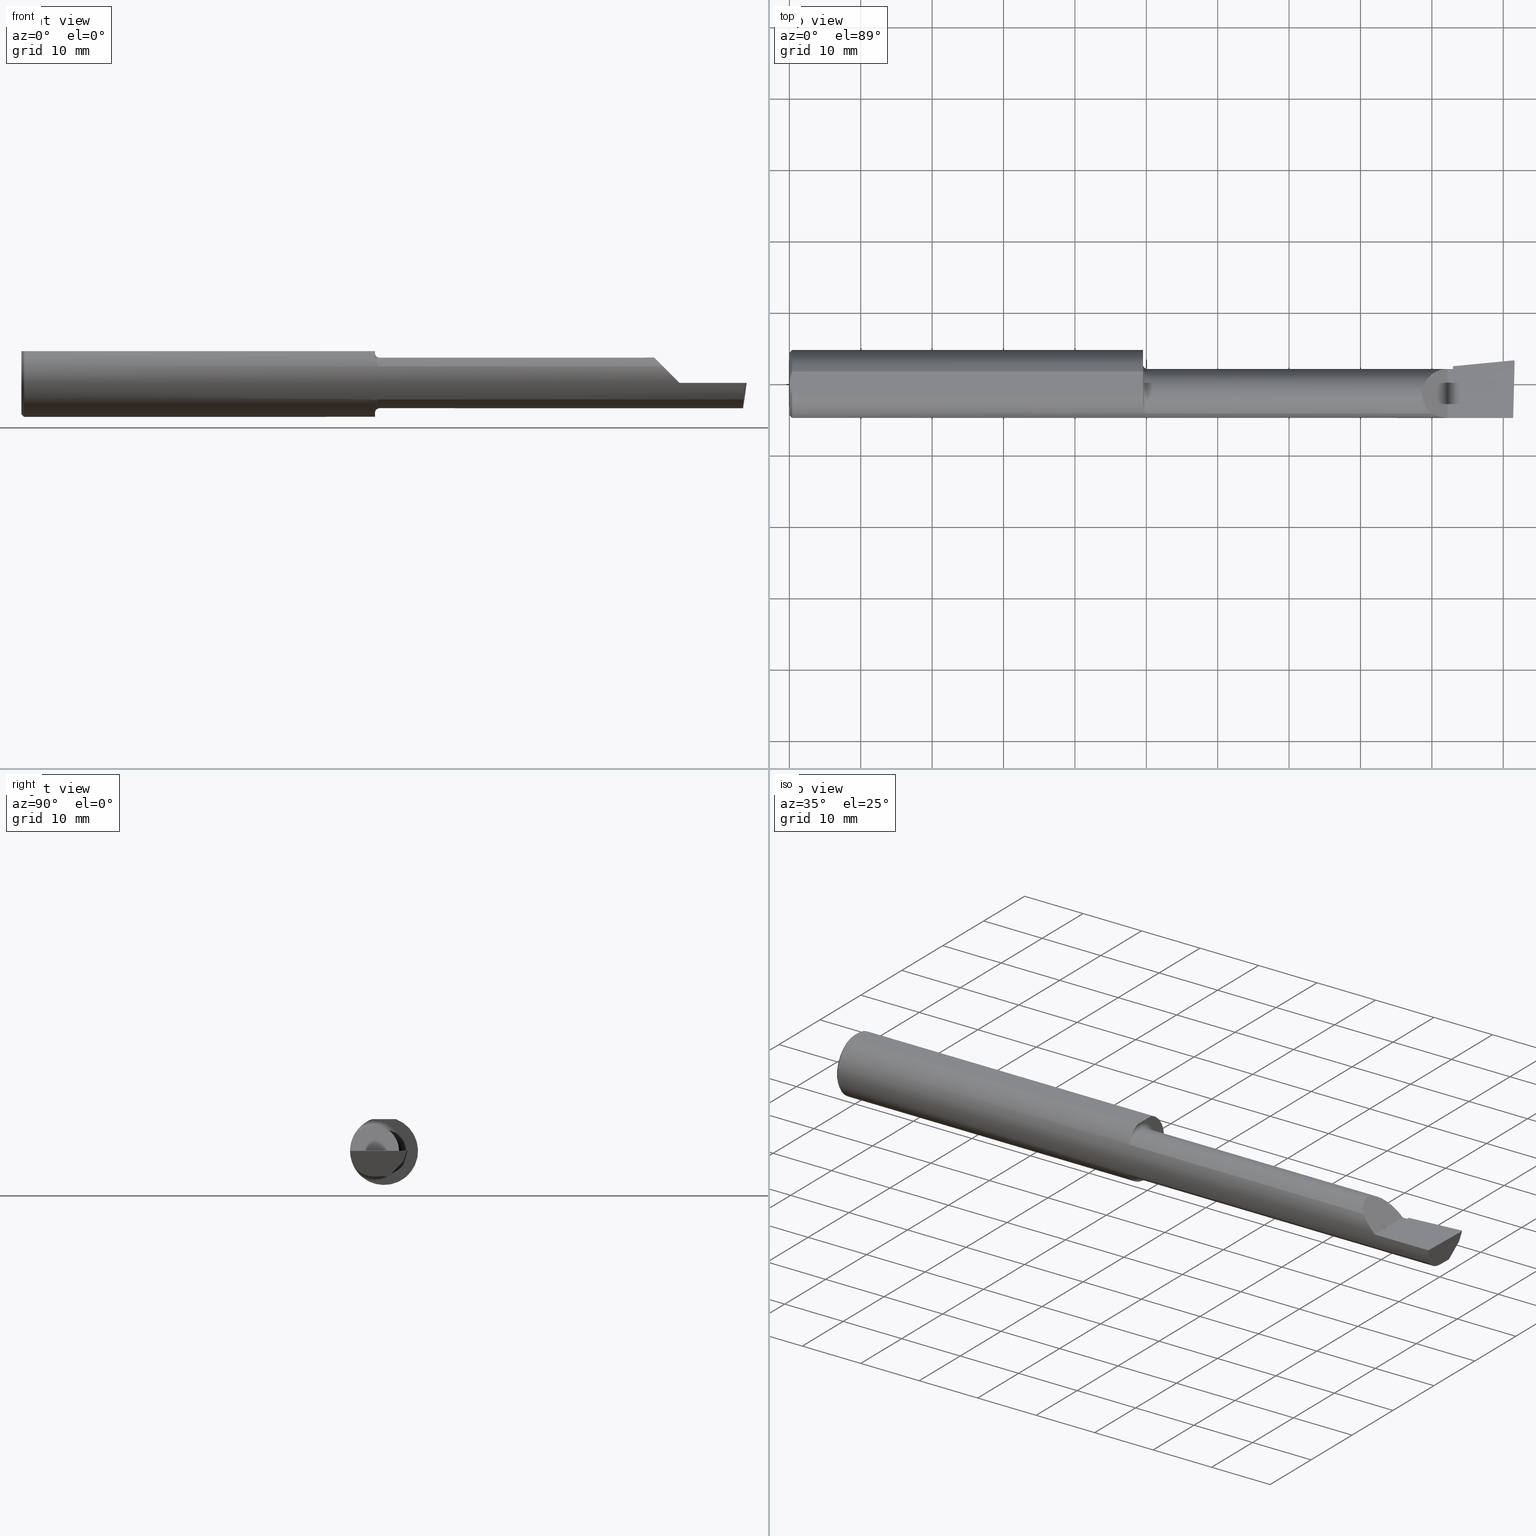
[diagram: canonical four-view strip — front | top / right | iso, engineering-drawing reading convention]
A machine part, canonical four-view strip (front | top / right | iso — engineering-drawing reading convention). The complete STEP part file that produces these views, byte-faithful:
ISO-10303-21;
HEADER;
FILE_DESCRIPTION (( 'STEP AP203' ),
    '1' );
FILE_NAME ('213645-B3202000R.STEP',
    '2024-04-12T22:49:06',
    ( '' ),
    ( '' ),
    'SwSTEP 2.0',
    'SolidWorks 2022',
    '' );
FILE_SCHEMA (( 'CONFIG_CONTROL_DESIGN' ));
ENDSEC;

DATA;
#1 = VERTEX_POINT ( 'NONE', #52 ) ;
#2 = DIRECTION ( 'NONE',  ( -1.000000000000000000, 5.691349986800549142E-18, -0.000000000000000000 ) ) ;
#3 = ORIENTED_EDGE ( 'NONE', *, *, #478, .T. ) ;
#4 = CARTESIAN_POINT ( 'NONE',  ( 1.970903862568969656, -0.1628809688430622182, 0.09258733509388467064 ) ) ;
#5 = DIRECTION ( 'NONE',  ( 0.09165774897393337561, -0.9519021185660612172, 0.2923717047227311627 ) ) ;
#6 = SECURITY_CLASSIFICATION ( '', '', #207 ) ;
#7 = EDGE_CURVE ( 'NONE', #268, #485, #713, .T. ) ;
#8 = ORIENTED_EDGE ( 'NONE', *, *, #262, .T. ) ;
#9 = CYLINDRICAL_SURFACE ( 'NONE', #236, 0.006499999999999991028 ) ;
#10 = CARTESIAN_POINT ( 'NONE',  ( 3.991786964307025620, 0.1037103972642544891, -0.06112352112763067696 ) ) ;
#11 = EDGE_LOOP ( 'NONE', ( #200, #88, #474, #169, #164, #527, #187, #192, #103, #159 ) ) ;
#12 = DIRECTION ( 'NONE',  ( 4.268512490100411279E-18, -1.000000000000000000, 0.000000000000000000 ) ) ;
#13 = AXIS2_PLACEMENT_3D ( 'NONE', #141, #158, #690 ) ;
#14 = LINE ( 'NONE', #670, #515 ) ;
#15 =( BOUNDED_CURVE ( )  B_SPLINE_CURVE ( 3, ( #481, #705, #602, #642 ),
 .UNSPECIFIED., .F., .T. ) 
 B_SPLINE_CURVE_WITH_KNOTS ( ( 4, 4 ),
 ( 0.4889314207010859170, 1.042347087928808147 ),
 .UNSPECIFIED. ) 
 CURVE ( )  GEOMETRIC_REPRESENTATION_ITEM ( )  RATIONAL_B_SPLINE_CURVE ( ( 1.000000000000000000, 0.9746400248777661313, 0.9746400248777661313, 1.000000000000000000 ) ) 
 REPRESENTATION_ITEM ( '' )  );
#16 = EDGE_CURVE ( 'NONE', #329, #281, #35, .T. ) ;
#17 = CARTESIAN_POINT ( 'NONE',  ( 1.950000000000000178, -0.09715400696864148755, -0.1601908905959922580 ) ) ;
#18 = CARTESIAN_POINT ( 'NONE',  ( 3.659999999999999698, 0.1149890494305082084, -0.01656765604781321524 ) ) ;
#19 = EDGE_CURVE ( 'NONE', #91, #691, #139, .T. ) ;
#20 = CARTESIAN_POINT ( 'NONE',  ( 3.659999999999999698, -0.05739999999999999963, 0.000000000000000000 ) ) ;
#21 = DIRECTION ( 'NONE',  ( -1.000000000000000000, -0.000000000000000000, -0.000000000000000000 ) ) ;
#22 = FACE_OUTER_BOUND ( 'NONE', #270, .T. ) ;
#23 = AXIS2_PLACEMENT_3D ( 'NONE', #244, #686, #195 ) ;
#24 = DIRECTION ( 'NONE',  ( 1.000000000000000000, 0.000000000000000000, 0.000000000000000000 ) ) ;
#25 = CARTESIAN_POINT ( 'NONE',  ( 3.659999999999999698, 0.09791172361284120051, -1.402030126304829977E-15 ) ) ;
#26 = ADVANCED_FACE ( 'NONE', ( #592 ), #343, .T. ) ;
#27 = APPLICATION_PROTOCOL_DEFINITION ( 'international standard', 'config_control_design', 1994, #584 ) ;
#28 = AXIS2_PLACEMENT_3D ( 'NONE', #460, #674, #12 ) ;
#29 = ORIENTED_EDGE ( 'NONE', *, *, #43, .T. ) ;
#30 = DIRECTION ( 'NONE',  ( 0.000000000000000000, -1.000000000000000000, 0.000000000000000000 ) ) ;
#31 = EDGE_LOOP ( 'NONE', ( #469, #117, #29, #590, #84 ) ) ;
#32 = PERSON_AND_ORGANIZATION ( #124, #227 ) ;
#33 = ORIENTED_EDGE ( 'NONE', *, *, #193, .T. ) ;
#34 = DIRECTION ( 'NONE',  ( -1.000000000000000000, -0.000000000000000000, -0.000000000000000000 ) ) ;
#35 = LINE ( 'NONE', #699, #364 ) ;
#36 = CIRCLE ( 'NONE', #13, 0.1400500000000002299 ) ;
#37 = APPROVAL_ROLE ( '' ) ;
#38 = VERTEX_POINT ( 'NONE', #389 ) ;
#39 = CARTESIAN_POINT ( 'NONE',  ( 3.992906680581862489, 0.1299669910246663840, -1.701202096925064102E-16 ) ) ;
#40 = ORIENTED_EDGE ( 'NONE', *, *, #346, .T. ) ;
#41 = CALENDAR_DATE ( 2024, 12, 4 ) ;
#42 = CARTESIAN_POINT ( 'NONE',  ( 1.950000000000000178, -0.09715400696864148755, 0.1601908905959922580 ) ) ;
#43 = EDGE_CURVE ( 'NONE', #691, #137, #48, .T. ) ;
#44 = APPROVAL_DATE_TIME ( #688, #264 ) ;
#45 = ORIENTED_EDGE ( 'NONE', *, *, #19, .T. ) ;
#46 = CARTESIAN_POINT ( 'NONE',  ( 3.992906680581862489, 0.1299669910246663840, -1.701202096925064102E-16 ) ) ;
#47 = ORIENTED_EDGE ( 'NONE', *, *, #142, .F. ) ;
#48 = B_SPLINE_CURVE_WITH_KNOTS ( 'NONE', 3,
 ( #512, #122, #610, #347, #504, #162 ),
 .UNSPECIFIED., .F., .F.,
 ( 4, 2, 4 ),
 ( 0.003480013901590607410, 0.004330767971208083697, 0.005181522040825559984 ),
 .UNSPECIFIED. ) ;
#49 = VECTOR ( 'NONE', #416, 39.37007874015748143 ) ;
#50 = VERTEX_POINT ( 'NONE', #230 ) ;
#51 = CARTESIAN_POINT ( 'NONE',  ( 1.950000000000000178, -0.06597272163553666302, 0.1753499999999999781 ) ) ;
#52 = CARTESIAN_POINT ( 'NONE',  ( 1.950000000000000178, -0.09715400696864148755, 0.1601908905959922580 ) ) ;
#53 = ORIENTED_EDGE ( 'NONE', *, *, #272, .T. ) ;
#54 = CARTESIAN_POINT ( 'NONE',  ( 3.475085956200449022, 0.08265000000000018165, 0.1549140437995492336 ) ) ;
#55 = CARTESIAN_POINT ( 'NONE',  ( 3.977873865042411250, -0.05739999999999999963, -0.1400500000000000633 ) ) ;
#56 = ORIENTED_EDGE ( 'NONE', *, *, #588, .T. ) ;
#57 = CARTESIAN_POINT ( 'NONE',  ( 1.953025912205684111, -0.1310442973014116497, 0.1341609063345041430 ) ) ;
#58 = LINE ( 'NONE', #177, #580 ) ;
#59 = ORIENTED_EDGE ( 'NONE', *, *, #81, .T. ) ;
#60 = LINE ( 'NONE', #495, #123 ) ;
#61 = EDGE_CURVE ( 'NONE', #304, #289, #58, .T. ) ;
#62 = PLANE ( 'NONE',  #240 ) ;
#63 = CC_DESIGN_PERSON_AND_ORGANIZATION_ASSIGNMENT ( #32, #152, ( #6 ) ) ;
#64 = EDGE_LOOP ( 'NONE', ( #615, #311, #668, #153, #664 ) ) ;
#65 = CARTESIAN_POINT ( 'NONE',  ( 1.975000000000000089, -0.1635956445993030084, 0.09130436773856158428 ) ) ;
#66 = CARTESIAN_POINT ( 'NONE',  ( 3.977873865042411250, -0.05739999999999999963, -0.1400500000000000633 ) ) ;
#67 = LOCAL_TIME ( 15, 49, 6.000000000000000000, #320 ) ;
#68 = VERTEX_POINT ( 'NONE', #10 ) ;
#69 = FACE_OUTER_BOUND ( 'NONE', #197, .T. ) ;
#70 = LINE ( 'NONE', #625, #210 ) ;
#71 = CARTESIAN_POINT ( 'NONE',  ( 1.975000000000000089, -0.1635956445993032859, -0.09130436773856125121 ) ) ;
#72 = AXIS2_PLACEMENT_3D ( 'NONE', #709, #97, #421 ) ;
#73 = CARTESIAN_POINT ( 'NONE',  ( 1.967975941902153414, -0.1612443294219081946, -0.09540922431498183309 ) ) ;
#74 = EDGE_CURVE ( 'NONE', #99, #289, #631, .T. ) ;
#75 = DIRECTION ( 'NONE',  ( -1.000000000000000000, -4.268512490100411279E-18, 0.000000000000000000 ) ) ;
#76 = DIRECTION ( 'NONE',  ( -4.268512490100411279E-18, 1.000000000000000000, 0.000000000000000000 ) ) ;
#77 = CARTESIAN_POINT ( 'NONE',  ( 3.986748873877666188, 0.1140025764947606574, -0.05001468779820775895 ) ) ;
#78 = LINE ( 'NONE', #673, #175 ) ;
#79 = DIRECTION ( 'NONE',  ( 0.000000000000000000, 1.000000000000000000, 8.537024980200821325E-17 ) ) ;
#80 = FACE_OUTER_BOUND ( 'NONE', #436, .T. ) ;
#81 = EDGE_CURVE ( 'NONE', #208, #94, #182, .T. ) ;
#82 = AXIS2_PLACEMENT_3D ( 'NONE', #471, #138, #410 ) ;
#83 =( CONVERSION_BASED_UNIT ( 'INCH', #535 ) LENGTH_UNIT ( ) NAMED_UNIT ( #667 ) );
#84 = ORIENTED_EDGE ( 'NONE', *, *, #493, .F. ) ;
#85 = DIRECTION ( 'NONE',  ( -0.1053106618240643999, -0.6976485211320200275, -0.7086580314005358483 ) ) ;
#86 = DIRECTION ( 'NONE',  ( -0.02617694830779389997, -0.9996573249755593693, -8.535148296544462419E-17 ) ) ;
#87 = ORIENTED_EDGE ( 'NONE', *, *, #179, .T. ) ;
#88 = ORIENTED_EDGE ( 'NONE', *, *, #716, .T. ) ;
#89 = LOCAL_TIME ( 15, 49, 6.000000000000000000, #693 ) ;
#90 = PERSON_AND_ORGANIZATION_ROLE ( 'design_owner' ) ;
#91 = VERTEX_POINT ( 'NONE', #563 ) ;
#92 = CARTESIAN_POINT ( 'NONE',  ( 1.975000000000000089, -0.1635956445993030084, 0.09130436773856158428 ) ) ;
#93 = APPROVAL ( #538, 'UNSPECIFIED' ) ;
#94 = VERTEX_POINT ( 'NONE', #55 ) ;
#95 = ADVANCED_FACE ( 'NONE', ( #276 ), #62, .F. ) ;
#96 = VERTEX_POINT ( 'NONE', #607 ) ;
#97 = DIRECTION ( 'NONE',  ( -1.000000000000000000, -4.268512490100411279E-18, 0.000000000000000000 ) ) ;
#98 =( NAMED_UNIT ( * ) PLANE_ANGLE_UNIT ( ) SI_UNIT ( $, .RADIAN. ) );
#99 = VERTEX_POINT ( 'NONE', #171 ) ;
#100 = VECTOR ( 'NONE', #407, 39.37007874015748143 ) ;
#101 = CARTESIAN_POINT ( 'NONE',  ( 1.950000000000000178, 0.000000000000000000, 0.000000000000000000 ) ) ;
#102 = ORIENTED_EDGE ( 'NONE', *, *, #431, .F. ) ;
#103 = ORIENTED_EDGE ( 'NONE', *, *, #148, .T. ) ;
#104 = VECTOR ( 'NONE', #369, 39.37007874015748143 ) ;
#105 = ORIENTED_EDGE ( 'NONE', *, *, #300, .T. ) ;
#106 = CARTESIAN_POINT ( 'NONE',  ( 3.986928424763410472, 0.1077565752722221687, -0.04820640339064741209 ) ) ;
#107 = CARTESIAN_POINT ( 'NONE',  ( 3.977925907309857845, -0.1365595166907234981, -0.1227499502647109025 ) ) ;
#108 = ORIENTED_EDGE ( 'NONE', *, *, #400, .F. ) ;
#109 = LINE ( 'NONE', #275, #567 ) ;
#110 = APPROVAL_PERSON_ORGANIZATION ( #212, #264, #37 ) ;
#111 = APPROVAL_DATE_TIME ( #423, #600 ) ;
#112 = ADVANCED_FACE ( 'NONE', ( #662 ), #559, .F. ) ;
#113 = ORIENTED_EDGE ( 'NONE', *, *, #16, .F. ) ;
#114 = CARTESIAN_POINT ( 'NONE',  ( 1.975000000000000089, -0.05740000000000000657, 0.000000000000000000 ) ) ;
#115 = CC_DESIGN_DATE_AND_TIME_ASSIGNMENT ( #488, #640, ( #558 ) ) ;
#116 = CARTESIAN_POINT ( 'NONE',  ( 3.538695632261437130, -0.1635956445993027863, 0.09130436773856213939 ) ) ;
#117 = ORIENTED_EDGE ( 'NONE', *, *, #555, .T. ) ;
#118 = EDGE_CURVE ( 'NONE', #392, #485, #132, .T. ) ;
#119 = FACE_OUTER_BOUND ( 'NONE', #711, .T. ) ;
#120 = CARTESIAN_POINT ( 'NONE',  ( 3.629999999999999893, -0.1873499999999999888, -1.383850883036508279E-16 ) ) ;
#121 = CARTESIAN_POINT ( 'NONE',  ( 1.958072954143140310, -0.1479074971576201103, 0.1152872342625229363 ) ) ;
#122 = CARTESIAN_POINT ( 'NONE',  ( 0.003000000000000171366, 0.01127363201155561975, 0.1753499999999999781 ) ) ;
#123 = VECTOR ( 'NONE', #219, 39.37007874015748143 ) ;
#124 = PERSON ( 'UNSPECIFIED', 'UNSPECIFIED', 'UNSPECIFIED', ('UNSPECIFIED'), ('UNSPECIFIED'), ('UNSPECIFIED') ) ;
#125 = CARTESIAN_POINT ( 'NONE',  ( 0.000000000000000000, -0.06597272163553657975, 0.1753499999999999781 ) ) ;
#126 = CARTESIAN_POINT ( 'NONE',  ( 1.975000000000000089, -0.1635956445993032859, -0.09130436773856125121 ) ) ;
#127 = EDGE_CURVE ( 'NONE', #38, #451, #228, .T. ) ;
#128 = CARTESIAN_POINT ( 'NONE',  ( 4.000000000000000000, 0.2373500000000000332, 0.1753499999999999504 ) ) ;
#129 = DIRECTION ( 'NONE',  ( 0.1240019227988278100, 0.3022330132596598440, 0.9451342385281467084 ) ) ;
#130 = CARTESIAN_POINT ( 'NONE',  ( 1.953041727949558215, -0.1311116946065054023, -0.1340922927843367918 ) ) ;
#131 = CIRCLE ( 'NONE', #509, 0.1400499999999998413 ) ;
#132 =( BOUNDED_CURVE ( )  B_SPLINE_CURVE ( 3, ( #334, #507, #456, #553 ),
 .UNSPECIFIED., .F., .F. ) 
 B_SPLINE_CURVE_WITH_KNOTS ( ( 4, 4 ),
 ( 3.403716554974003827, 3.413688882750591347 ),
 .UNSPECIFIED. ) 
 CURVE ( )  GEOMETRIC_REPRESENTATION_ITEM ( )  RATIONAL_B_SPLINE_CURVE ( ( 1.000000000000000000, 0.9999917127403961103, 0.9999917127403961103, 1.000000000000000000 ) ) 
 REPRESENTATION_ITEM ( '' )  );
#133 = CARTESIAN_POINT ( 'NONE',  ( 0.01499999999999999424, 0.000000000000000000, 0.000000000000000000 ) ) ;
#134 = ADVANCED_FACE ( 'NONE', ( #166 ), #718, .F. ) ;
#135 = LINE ( 'NONE', #520, #616 ) ;
#136 = LINE ( 'NONE', #521, #218 ) ;
#137 = VERTEX_POINT ( 'NONE', #350 ) ;
#138 = DIRECTION ( 'NONE',  ( -8.744705756855574331E-17, 0.000000000000000000, -1.000000000000000000 ) ) ;
#139 = B_SPLINE_CURVE_WITH_KNOTS ( 'NONE', 3,
 ( #696, #647, #318, #483, #146, #374 ),
 .UNSPECIFIED., .F., .F.,
 ( 4, 2, 4 ),
 ( 0.001779942938356815062, 0.002629978419973711019, 0.003480013901590607410 ),
 .UNSPECIFIED. ) ;
#140 = EDGE_LOOP ( 'NONE', ( #597, #560, #641, #326 ) ) ;
#141 = CARTESIAN_POINT ( 'NONE',  ( 3.659999999999999698, -0.05739999999999999963, 0.000000000000000000 ) ) ;
#142 = EDGE_CURVE ( 'NONE', #94, #564, #14, .T. ) ;
#143 = ORIENTED_EDGE ( 'NONE', *, *, #380, .T. ) ;
#144 = PERSON_AND_ORGANIZATION ( #124, #227 ) ;
#145 = PLANE ( 'NONE',  #72 ) ;
#146 = CARTESIAN_POINT ( 'NONE',  ( 0.003000000000000172234, -0.01126410975715120416, 0.1753500000000000059 ) ) ;
#147 = PRODUCT ( '213645-B3202000R', '213645-B3202000R', '', ( #528 ) ) ;
#148 = EDGE_CURVE ( 'NONE', #268, #247, #626, .T. ) ;
#149 = CALENDAR_DATE ( 2024, 12, 4 ) ;
#150 = EDGE_LOOP ( 'NONE', ( #384, #476, #510 ) ) ;
#151 = CARTESIAN_POINT ( 'NONE',  ( 3.538695632261437130, -0.1635956445993027863, 0.09130436773856213939 ) ) ;
#152 = PERSON_AND_ORGANIZATION_ROLE ( 'classification_officer' ) ;
#153 = ORIENTED_EDGE ( 'NONE', *, *, #19, .F. ) ;
#154 = CARTESIAN_POINT ( 'NONE',  ( 3.993310817358646236, 0.1299961668063693565, -1.707455450039281104E-16 ) ) ;
#155 = EDGE_LOOP ( 'NONE', ( #446, #540, #381, #102 ) ) ;
#156 = AXIS2_PLACEMENT_3D ( 'NONE', #128, #458, #684 ) ;
#157 = EDGE_CURVE ( 'NONE', #50, #38, #340, .T. ) ;
#158 = DIRECTION ( 'NONE',  ( -1.000000000000000000, -4.268512490100411279E-18, -0.000000000000000000 ) ) ;
#159 = ORIENTED_EDGE ( 'NONE', *, *, #211, .T. ) ;
#160 = ORIENTED_EDGE ( 'NONE', *, *, #239, .T. ) ;
#161 = FACE_OUTER_BOUND ( 'NONE', #546, .T. ) ;
#162 = CARTESIAN_POINT ( 'NONE',  ( 0.01499999999999999424, 0.06597272163553663527, 0.1753499999999999781 ) ) ;
#163 = AXIS2_PLACEMENT_3D ( 'NONE', #20, #238, #30 ) ;
#164 = ORIENTED_EDGE ( 'NONE', *, *, #288, .F. ) ;
#165 = LINE ( 'NONE', #613, #308 ) ;
#166 = FACE_OUTER_BOUND ( 'NONE', #309, .T. ) ;
#167 = EDGE_CURVE ( 'NONE', #68, #608, #70, .T. ) ;
#168 = CC_DESIGN_DATE_AND_TIME_ASSIGNMENT ( #251, #435, ( #6 ) ) ;
#169 = ORIENTED_EDGE ( 'NONE', *, *, #167, .T. ) ;
#170 = DIRECTION ( 'NONE',  ( 0.7071067811865390240, 0.000000000000000000, -0.7071067811865560104 ) ) ;
#171 = CARTESIAN_POINT ( 'NONE',  ( 3.629999999999999893, -0.1873499999999999888, -1.383850883036508279E-16 ) ) ;
#172 = ADVANCED_FACE ( 'NONE', ( #22 ), #180, .T. ) ;
#173 = ORIENTED_EDGE ( 'NONE', *, *, #193, .F. ) ;
#174 = CARTESIAN_POINT ( 'NONE',  ( 1.962204638458736383, -0.1550630761760524445, 0.1052254855377559722 ) ) ;
#175 = VECTOR ( 'NONE', #297, 39.37007874015748854 ) ;
#176 = CARTESIAN_POINT ( 'NONE',  ( 1.950000000000000178, 0.06597272163553663527, 0.1753499999999999781 ) ) ;
#177 = CARTESIAN_POINT ( 'NONE',  ( 2.817500000000000338, -0.1635956445993029806, 0.09130436773856190347 ) ) ;
#178 = CARTESIAN_POINT ( 'NONE',  ( 0.01499999999999999424, 0.000000000000000000, 0.000000000000000000 ) ) ;
#179 = EDGE_CURVE ( 'NONE', #284, #329, #185, .T. ) ;
#180 = CYLINDRICAL_SURFACE ( 'NONE', #606, 0.006499999999999991028 ) ;
#181 =( GEOMETRIC_REPRESENTATION_CONTEXT ( 3 ) GLOBAL_UNCERTAINTY_ASSIGNED_CONTEXT ( ( #623 ) ) GLOBAL_UNIT_ASSIGNED_CONTEXT ( ( #83, #98, #644 ) ) REPRESENTATION_CONTEXT ( 'NONE', 'WORKASPACE' ) );
#182 =( BOUNDED_CURVE ( )  B_SPLINE_CURVE ( 3, ( #617, #107, #406, #66 ),
 .UNSPECIFIED., .F., .F. ) 
 B_SPLINE_CURVE_WITH_KNOTS ( ( 4, 4 ),
 ( 5.632580117768156036, 6.493234751459283416 ),
 .UNSPECIFIED. ) 
 CURVE ( )  GEOMETRIC_REPRESENTATION_ITEM ( )  RATIONAL_B_SPLINE_CURVE ( ( 1.000000000000000000, 0.9392195014330944058, 0.9392195014330944058, 1.000000000000000000 ) ) 
 REPRESENTATION_ITEM ( '' )  );
#183 = CARTESIAN_POINT ( 'NONE',  ( 0.01499999999999999424, 2.294375778202566330E-17, 0.1873499999999999888 ) ) ;
#184 = FACE_OUTER_BOUND ( 'NONE', #426, .T. ) ;
#185 = LINE ( 'NONE', #409, #391 ) ;
#186 = ADVANCED_FACE ( 'NONE', ( #517 ), #622, .T. ) ;
#187 = ORIENTED_EDGE ( 'NONE', *, *, #118, .T. ) ;
#188 = DIRECTION ( 'NONE',  ( 0.000000000000000000, 0.000000000000000000, 1.000000000000000000 ) ) ;
#189 = CC_DESIGN_PERSON_AND_ORGANIZATION_ASSIGNMENT ( #265, #246, ( #558 ) ) ;
#190 = CARTESIAN_POINT ( 'NONE',  ( 1.956145841430604770, -0.1426194794824340306, -0.1217813759115465855 ) ) ;
#191 = AXIS2_PLACEMENT_3D ( 'NONE', #178, #21, #188 ) ;
#192 = ORIENTED_EDGE ( 'NONE', *, *, #7, .F. ) ;
#193 = EDGE_CURVE ( 'NONE', #68, #50, #678, .T. ) ;
#194 =( LENGTH_UNIT ( ) NAMED_UNIT ( * ) SI_UNIT ( $, .METRE. ) );
#195 = DIRECTION ( 'NONE',  ( 4.268512490100412049E-18, -1.000000000000000000, 0.000000000000000000 ) ) ;
#196 = APPROVAL_ROLE ( '' ) ;
#197 = EDGE_LOOP ( 'NONE', ( #710, #341 ) ) ;
#198 = AXIS2_PLACEMENT_3D ( 'NONE', #539, #34, #205 ) ;
#199 = CALENDAR_DATE ( 2024, 12, 4 ) ;
#200 = ORIENTED_EDGE ( 'NONE', *, *, #354, .T. ) ;
#201 = CARTESIAN_POINT ( 'NONE',  ( 1.949999999999999734, -0.1045012500212956219, 0.1557348687830033274 ) ) ;
#202 = EDGE_CURVE ( 'NONE', #604, #654, #386, .T. ) ;
#203 = PRODUCT_DEFINITION_FORMATION_WITH_SPECIFIED_SOURCE ( 'ANY', '', #147, .NOT_KNOWN. ) ;
#204 = ORIENTED_EDGE ( 'NONE', *, *, #454, .T. ) ;
#205 = DIRECTION ( 'NONE',  ( 0.000000000000000000, 0.000000000000000000, 1.000000000000000000 ) ) ;
#206 = CARTESIAN_POINT ( 'NONE',  ( 0.01499999999999999424, 0.000000000000000000, 0.000000000000000000 ) ) ;
#207 = SECURITY_CLASSIFICATION_LEVEL ( 'unclassified' ) ;
#208 = VERTEX_POINT ( 'NONE', #235 ) ;
#209 = DIRECTION ( 'NONE',  ( 0.000000000000000000, 1.000000000000000000, 0.000000000000000000 ) ) ;
#210 = VECTOR ( 'NONE', #85, 39.37007874015748854 ) ;
#211 = EDGE_CURVE ( 'NONE', #247, #316, #78, .T. ) ;
#212 = PERSON_AND_ORGANIZATION ( #124, #227 ) ;
#213 = ORIENTED_EDGE ( 'NONE', *, *, #61, .F. ) ;
#214 = DIRECTION ( 'NONE',  ( 1.000000000000000000, 4.268512490100411279E-18, 0.000000000000000000 ) ) ;
#215 = ORIENTED_EDGE ( 'NONE', *, *, #335, .T. ) ;
#216 =( BOUNDED_CURVE ( )  B_SPLINE_CURVE ( 3, ( #411, #359, #77, #418 ),
 .UNSPECIFIED., .F., .T. ) 
 B_SPLINE_CURVE_WITH_KNOTS ( ( 4, 4 ),
 ( 3.064097098354646054, 3.156599629463170409 ),
 .UNSPECIFIED. ) 
 CURVE ( )  GEOMETRIC_REPRESENTATION_ITEM ( )  RATIONAL_B_SPLINE_CURVE ( ( 1.000000000000000000, 0.9992870672494019724, 0.9992870672494019724, 1.000000000000000000 ) ) 
 REPRESENTATION_ITEM ( '' )  );
#217 = ORIENTED_EDGE ( 'NONE', *, *, #127, .F. ) ;
#218 = VECTOR ( 'NONE', #628, 39.37007874015748143 ) ;
#219 = DIRECTION ( 'NONE',  ( 1.000000000000000000, 0.000000000000000000, 0.000000000000000000 ) ) ;
#220 = ORIENTED_EDGE ( 'NONE', *, *, #663, .T. ) ;
#221 = CARTESIAN_POINT ( 'NONE',  ( 1.966855994529494778, -0.1603175578889970976, 0.09696363432848430219 ) ) ;
#222 = EDGE_CURVE ( 'NONE', #316, #329, #463, .T. ) ;
#223 = CARTESIAN_POINT ( 'NONE',  ( 3.656639924654159213, 0.06539171466162843616, -0.06735725908305588427 ) ) ;
#224 = CARTESIAN_POINT ( 'NONE',  ( 3.986947077001955719, 0.1139931928746992507, -0.05004403198038598344 ) ) ;
#225 = EDGE_CURVE ( 'NONE', #281, #589, #135, .T. ) ;
#226 = ORIENTED_EDGE ( 'NONE', *, *, #222, .F. ) ;
#227 = ORGANIZATION ( 'UNSPECIFIED', 'UNSPECIFIED', '' ) ;
#228 = LINE ( 'NONE', #500, #434 ) ;
#229 = CARTESIAN_POINT ( 'NONE',  ( 3.648099498941296481, 0.08140859995291782614, -0.05000000000000002359 ) ) ;
#230 = CARTESIAN_POINT ( 'NONE',  ( 3.999806390372749654, 0.1232563466314185591, -1.707108835695200937E-16 ) ) ;
#231 = AXIS2_PLACEMENT_3D ( 'NONE', #257, #598, #695 ) ;
#232 = CARTESIAN_POINT ( 'NONE',  ( 1.950000000000000178, -0.09715400696864148755, -0.1601908905959922580 ) ) ;
#233 = CARTESIAN_POINT ( 'NONE',  ( 3.997312560284794092, 0.1299961668063694953, -1.710954856479654506E-16 ) ) ;
#234 = FACE_OUTER_BOUND ( 'NONE', #155, .T. ) ;
#235 = CARTESIAN_POINT ( 'NONE',  ( 3.981080296960509024, -0.1635956445993029806, -0.09130436773856190347 ) ) ;
#236 = AXIS2_PLACEMENT_3D ( 'NONE', #106, #443, #333 ) ;
#237 = DIRECTION ( 'NONE',  ( 0.000000000000000000, 0.000000000000000000, -1.000000000000000000 ) ) ;
#238 = DIRECTION ( 'NONE',  ( -1.000000000000000000, -4.268512490100411279E-18, -0.000000000000000000 ) ) ;
#239 = EDGE_CURVE ( 'NONE', #284, #247, #331, .T. ) ;
#240 = AXIS2_PLACEMENT_3D ( 'NONE', #339, #666, #403 ) ;
#241 = DIRECTION ( 'NONE',  ( -4.268512490100411279E-18, 1.000000000000000000, 3.732688574539098315E-34 ) ) ;
#242 = ADVANCED_FACE ( 'NONE', ( #184 ), #683, .F. ) ;
#243 = PLANE ( 'NONE',  #370 ) ;
#244 = CARTESIAN_POINT ( 'NONE',  ( 0.000000000000000000, -0.05740000000000001351, 0.000000000000000000 ) ) ;
#245 = AXIS2_PLACEMENT_3D ( 'NONE', #295, #415, #464 ) ;
#246 = PERSON_AND_ORGANIZATION_ROLE ( 'creator' ) ;
#247 = VERTEX_POINT ( 'NONE', #419 ) ;
#248 = CARTESIAN_POINT ( 'NONE',  ( 1.950000000000000178, 0.2373500000000000332, 0.1753499999999999504 ) ) ;
#249 = ADVANCED_BREP_SHAPE_REPRESENTATION ( '213645-B3202000R', ( #549, #587 ), #181 ) ;
#250 = ORIENTED_EDGE ( 'NONE', *, *, #478, .F. ) ;
#251 = DATE_AND_TIME ( #596, #299 ) ;
#252 = EDGE_LOOP ( 'NONE', ( #532, #635, #336, #344 ) ) ;
#253 = CARTESIAN_POINT ( 'NONE',  ( 1.950000000000000178, -0.05740000000000000657, 0.000000000000000000 ) ) ;
#254 = AXIS2_PLACEMENT_3D ( 'NONE', #307, #529, #76 ) ;
#255 = DIRECTION ( 'NONE',  ( 0.9953961983671787417, 0.09584575252022461966, -8.704446866213619353E-17 ) ) ;
#256 = COORDINATED_UNIVERSAL_TIME_OFFSET ( 8, 0, .BEHIND. ) ;
#257 = CARTESIAN_POINT ( 'NONE',  ( 1.950000000000000178, 0.000000000000000000, 0.000000000000000000 ) ) ;
#258 = ORIENTED_EDGE ( 'NONE', *, *, #454, .F. ) ;
#259 = PERSON_AND_ORGANIZATION ( #124, #227 ) ;
#260 = ORIENTED_EDGE ( 'NONE', *, *, #81, .F. ) ;
#261 = CYLINDRICAL_SURFACE ( 'NONE', #198, 0.1873499999999999888 ) ;
#262 = EDGE_CURVE ( 'NONE', #99, #266, #360, .T. ) ;
#263 = PRODUCT_DEFINITION_SHAPE ( 'NONE', 'NONE',  #558 ) ;
#264 = APPROVAL ( #315, 'UNSPECIFIED' ) ;
#265 = PERSON_AND_ORGANIZATION ( #124, #227 ) ;
#266 = VERTEX_POINT ( 'NONE', #582 ) ;
#267 = CARTESIAN_POINT ( 'NONE',  ( 0.000000000000000000, 0.000000000000000000, 0.000000000000000000 ) ) ;
#268 = VERTEX_POINT ( 'NONE', #459 ) ;
#269 = VECTOR ( 'NONE', #591, 39.37007874015748854 ) ;
#270 = EDGE_LOOP ( 'NONE', ( #217, #397, #173, #498 ) ) ;
#271 = CARTESIAN_POINT ( 'NONE',  ( 1.972800914500665304, -0.1635956445997549802, 0.09130436773775216230 ) ) ;
#272 = EDGE_CURVE ( 'NONE', #704, #50, #634, .T. ) ;
#273 = EDGE_LOOP ( 'NONE', ( #636, #648, #489, #556 ) ) ;
#274 = CIRCLE ( 'NONE', #656, 0.1650499999999998635 ) ;
#275 = CARTESIAN_POINT ( 'NONE',  ( -5.978051742385470281E-19, 0.08265000000000000124, 1.790477306702064235E-16 ) ) ;
#276 = FACE_OUTER_BOUND ( 'NONE', #273, .T. ) ;
#277 = ORIENTED_EDGE ( 'NONE', *, *, #118, .F. ) ;
#278 = ADVANCED_FACE ( 'NONE', ( #80 ), #303, .T. ) ;
#279 = CARTESIAN_POINT ( 'NONE',  ( 3.629999999999999893, 0.08264999999999990410, -1.383850883036508279E-16 ) ) ;
#280 = CARTESIAN_POINT ( 'NONE',  ( 3.597861799102314073, -0.1873499999999999888, 0.03213820089768522348 ) ) ;
#281 = VERTEX_POINT ( 'NONE', #46 ) ;
#282 = DIRECTION ( 'NONE',  ( -1.000000000000000000, -4.268512490100411279E-18, -0.000000000000000000 ) ) ;
#283 = DIRECTION ( 'NONE',  ( 0.000000000000000000, -0.2936076258024069019, -0.9559260233253794592 ) ) ;
#284 = VERTEX_POINT ( 'NONE', #533 ) ;
#285 = CARTESIAN_POINT ( 'NONE',  ( 3.538695632261437130, -0.1635956445993027863, 0.09130436773856213939 ) ) ;
#286 = CC_DESIGN_APPROVAL ( #264, ( #558 ) ) ;
#287 = CARTESIAN_POINT ( 'NONE',  ( 3.653159806206770721, 0.06582018291673077948, -0.06657020401570135082 ) ) ;
#288 = EDGE_CURVE ( 'NONE', #660, #608, #594, .T. ) ;
#289 = VERTEX_POINT ( 'NONE', #151 ) ;
#290 = PLANE ( 'NONE',  #461 ) ;
#291 = DIRECTION ( 'NONE',  ( 1.000000000000000000, 4.268512490100411279E-18, 0.000000000000000000 ) ) ;
#292 = CIRCLE ( 'NONE', #679, 0.1873499999999999888 ) ;
#293 = CARTESIAN_POINT ( 'NONE',  ( 3.659999999999999698, 0.09791172361283663472, 0.000000000000000000 ) ) ;
#294 = CARTESIAN_POINT ( 'NONE',  ( 1.958068207442171582, -0.1478915270140212235, -0.1153063024254922520 ) ) ;
#295 = CARTESIAN_POINT ( 'NONE',  ( 0.000000000000000000, 0.000000000000000000, 0.000000000000000000 ) ) ;
#296 = EDGE_CURVE ( 'NONE', #654, #544, #445, .T. ) ;
#297 = DIRECTION ( 'NONE',  ( -2.972230601656783191E-18, 0.6963153109074925462, 0.7177360153954946975 ) ) ;
#298 = CC_DESIGN_PERSON_AND_ORGANIZATION_ASSIGNMENT ( #702, #484, ( #203 ) ) ;
#299 = LOCAL_TIME ( 15, 49, 6.000000000000000000, #708 ) ;
#300 = EDGE_CURVE ( 'NONE', #494, #96, #707, .T. ) ;
#301 = CARTESIAN_POINT ( 'NONE',  ( 1.966814909379089205, -0.1602818635245159828, -0.09702252612905271079 ) ) ;
#302 = LINE ( 'NONE', #183, #685 ) ;
#303 = CYLINDRICAL_SURFACE ( 'NONE', #23, 0.1400500000000000078 ) ;
#304 = VERTEX_POINT ( 'NONE', #92 ) ;
#305 = DIRECTION ( 'NONE',  ( 1.000000000000000000, 0.000000000000000000, 0.000000000000000000 ) ) ;
#306 = ORIENTED_EDGE ( 'NONE', *, *, #588, .F. ) ;
#307 = CARTESIAN_POINT ( 'NONE',  ( 1.950000000000000178, 0.1076499999999998430, 0.000000000000000000 ) ) ;
#308 = VECTOR ( 'NONE', #671, 39.37007874015748143 ) ;
#309 = EDGE_LOOP ( 'NONE', ( #258, #492, #8 ) ) ;
#310 = DIRECTION ( 'NONE',  ( 0.000000000000000000, 0.000000000000000000, 1.000000000000000000 ) ) ;
#311 = ORIENTED_EDGE ( 'NONE', *, *, #482, .F. ) ;
#312 = DIRECTION ( 'NONE',  ( 4.268512490100411279E-18, -1.000000000000000000, 1.438723400918613551E-16 ) ) ;
#313 = ORIENTED_EDGE ( 'NONE', *, *, #148, .F. ) ;
#314 = APPROVAL_PERSON_ORGANIZATION ( #144, #600, #477 ) ;
#315 = APPROVAL_STATUS ( 'not_yet_approved' ) ;
#316 = VERTEX_POINT ( 'NONE', #698 ) ;
#317 = FACE_OUTER_BOUND ( 'NONE', #367, .T. ) ;
#318 = CARTESIAN_POINT ( 'NONE',  ( 0.008227791779583753379, -0.04447712204611812409, 0.1753499999999999781 ) ) ;
#319 = B_SPLINE_CURVE_WITH_KNOTS ( 'NONE', 3,
 ( #42, #201, #405, #669, #57, #609, #121, #174, #338, #221, #562, #4, #271, #65 ),
 .UNSPECIFIED., .F., .F.,
 ( 4, 2, 2, 2, 2, 2, 4 ),
 ( 0.0002471551878304244871, 0.0008987327522055642889, 0.001550310316580703982, 0.002201887880955843892, 0.002527676663143413414, 0.002690571054237198608, 0.002853465445330983803 ),
 .UNSPECIFIED. ) ;
#320 = COORDINATED_UNIVERSAL_TIME_OFFSET ( 8, 0, .BEHIND. ) ;
#321 = ORIENTED_EDGE ( 'NONE', *, *, #390, .F. ) ;
#322 = EDGE_CURVE ( 'NONE', #268, #485, #15, .T. ) ;
#323 = CARTESIAN_POINT ( 'NONE',  ( 3.648099498941296481, 0.08140859995291782614, -0.05000000000000002359 ) ) ;
#324 = ORIENTED_EDGE ( 'NONE', *, *, #296, .T. ) ;
#325 = CC_DESIGN_APPROVAL ( #93, ( #203 ) ) ;
#326 = ORIENTED_EDGE ( 'NONE', *, *, #225, .F. ) ;
#327 = ADVANCED_FACE ( 'NONE', ( #317 ), #145, .T. ) ;
#328 = ORIENTED_EDGE ( 'NONE', *, *, #449, .F. ) ;
#329 = VERTEX_POINT ( 'NONE', #645 ) ;
#330 = CARTESIAN_POINT ( 'NONE',  ( 0.01499999999999999424, 0.000000000000000000, 0.000000000000000000 ) ) ;
#331 = CIRCLE ( 'NONE', #163, 0.1400500000000002299 ) ;
#332 = ORIENTED_EDGE ( 'NONE', *, *, #272, .F. ) ;
#333 = DIRECTION ( 'NONE',  ( 0.000000000000000000, 0.9524855432518799514, -0.3045837978228176923 ) ) ;
#334 = CARTESIAN_POINT ( 'NONE',  ( 3.659999999999999698, 0.01441505128072246775, -0.1202356058309985848 ) ) ;
#335 = EDGE_CURVE ( 'NONE', #551, #1, #650, .T. ) ;
#336 = ORIENTED_EDGE ( 'NONE', *, *, #354, .F. ) ;
#337 = VECTOR ( 'NONE', #86, 39.37007874015748143 ) ;
#338 = CARTESIAN_POINT ( 'NONE',  ( 1.963764108097883376, -0.1573043405450772758, 0.1018329020719633826 ) ) ;
#339 = CARTESIAN_POINT ( 'NONE',  ( 4.000000000000000000, -0.05739999999999999963, -0.1400500000000000633 ) ) ;
#340 =( BOUNDED_CURVE ( )  B_SPLINE_CURVE ( 3, ( #444, #448, #233, #659 ),
 .UNSPECIFIED., .F., .F. ) 
 B_SPLINE_CURVE_WITH_KNOTS ( ( 4, 4 ),
 ( 1.953092279228259232, 3.511516179717479869 ),
 .UNSPECIFIED. ) 
 CURVE ( )  GEOMETRIC_REPRESENTATION_ITEM ( )  RATIONAL_B_SPLINE_CURVE ( ( 1.000000000000000000, 0.8076450242550496927, 0.8076450242550496927, 1.000000000000000000 ) ) 
 REPRESENTATION_ITEM ( '' )  );
#341 = ORIENTED_EDGE ( 'NONE', *, *, #322, .F. ) ;
#342 = CARTESIAN_POINT ( 'NONE',  ( 3.991786964307025620, 0.1037103972642544891, -0.06112352112763067696 ) ) ;
#343 = CONICAL_SURFACE ( 'NONE', #378, 0.1873499999999999888, 0.7853981633974602694 ) ;
#344 = ORIENTED_EDGE ( 'NONE', *, *, #222, .T. ) ;
#345 = CARTESIAN_POINT ( 'NONE',  ( 3.975850273311265060, -0.1244607267090814540, -0.1422282308645909932 ) ) ;
#346 = EDGE_CURVE ( 'NONE', #38, #281, #362, .T. ) ;
#347 = CARTESIAN_POINT ( 'NONE',  ( 0.008244775919947423121, 0.04453482769755854470, 0.1753499999999999504 ) ) ;
#348 = DIRECTION ( 'NONE',  ( 0.000000000000000000, -1.000000000000000000, 0.000000000000000000 ) ) ;
#349 = TOROIDAL_SURFACE ( 'NONE', #28, 0.1650499999999998635, 0.02499999999999993894 ) ;
#350 = CARTESIAN_POINT ( 'NONE',  ( 0.01499999999999999424, 0.06597272163553663527, 0.1753499999999999781 ) ) ;
#351 = PLANE ( 'NONE',  #156 ) ;
#352 = DIRECTION ( 'NONE',  ( 0.000000000000000000, 0.9524855432518799514, -0.3045837978228176923 ) ) ;
#353 = DESIGN_CONTEXT ( 'detailed design', #394, 'design' ) ;
#354 = EDGE_CURVE ( 'NONE', #316, #589, #382, .T. ) ;
#355 = AXIS2_PLACEMENT_3D ( 'NONE', #614, #453, #569 ) ;
#356 = FACE_OUTER_BOUND ( 'NONE', #64, .T. ) ;
#357 = CARTESIAN_POINT ( 'NONE',  ( 1.950384441902395460, -0.1115101367984842329, -0.1507946173152221458 ) ) ;
#358 = EDGE_CURVE ( 'NONE', #392, #564, #36, .T. ) ;
#359 = CARTESIAN_POINT ( 'NONE',  ( 3.986548593472165614, 0.1139975411286092977, -0.05000000000000011380 ) ) ;
#360 = LINE ( 'NONE', #576, #49 ) ;
#361 = LINE ( 'NONE', #125, #100 ) ;
#362 =( BOUNDED_CURVE ( )  B_SPLINE_CURVE ( 3, ( #537, #154, #652, #39 ),
 .UNSPECIFIED., .F., .T. ) 
 B_SPLINE_CURVE_WITH_KNOTS ( ( 4, 4 ),
 ( 3.511516179717479869, 3.604018710826080163 ),
 .UNSPECIFIED. ) 
 CURVE ( )  GEOMETRIC_REPRESENTATION_ITEM ( )  RATIONAL_B_SPLINE_CURVE ( ( 1.000000000000000000, 0.9992870672494007511, 0.9992870672494007511, 1.000000000000000000 ) ) 
 REPRESENTATION_ITEM ( '' )  );
#363 = CARTESIAN_POINT ( 'NONE',  ( 3.990039159128060398, -0.2497391662021650749, -1.698694533788567331E-16 ) ) ;
#364 = VECTOR ( 'NONE', #255, 39.37007874015748143 ) ;
#365 = CARTESIAN_POINT ( 'NONE',  ( 1.972779935319433742, -0.1635956445993032027, -0.09130436773856144550 ) ) ;
#366 = CARTESIAN_POINT ( 'NONE',  ( 0.000000000000000000, 0.000000000000000000, 0.000000000000000000 ) ) ;
#367 = EDGE_LOOP ( 'NONE', ( #442, #439, #87, #226 ) ) ;
#368 = CARTESIAN_POINT ( 'NONE',  ( 3.984117089522338340, -0.1792580844883770730, -0.06324101202936152633 ) ) ;
#369 = DIRECTION ( 'NONE',  ( 0.06658005426110566449, -0.6914603011188222847, -0.7193398003386548556 ) ) ;
#370 = AXIS2_PLACEMENT_3D ( 'NONE', #293, #75, #470 ) ;
#371 = ORIENTED_EDGE ( 'NONE', *, *, #555, .F. ) ;
#372 = ORIENTED_EDGE ( 'NONE', *, *, #380, .F. ) ;
#373 = CARTESIAN_POINT ( 'NONE',  ( 3.977889026591898691, -0.05682100378451883371, -0.1400500000000000633 ) ) ;
#374 = CARTESIAN_POINT ( 'NONE',  ( 0.003000000000000218638, 2.334609556160449697E-17, 0.1753499999999999781 ) ) ;
#375 = ADVANCED_FACE ( 'NONE', ( #490 ), #261, .T. ) ;
#376 = ORIENTED_EDGE ( 'NONE', *, *, #482, .T. ) ;
#377 = DIRECTION ( 'NONE',  ( -1.000000000000000000, -4.268512490100411279E-18, -0.000000000000000000 ) ) ;
#378 = AXIS2_PLACEMENT_3D ( 'NONE', #206, #379, #595 ) ;
#379 = DIRECTION ( 'NONE',  ( 1.000000000000000000, 0.000000000000000000, 0.000000000000000000 ) ) ;
#380 = EDGE_CURVE ( 'NONE', #208, #704, #701, .T. ) ;
#381 = ORIENTED_EDGE ( 'NONE', *, *, #202, .T. ) ;
#382 = LINE ( 'NONE', #323, #491 ) ;
#383 = AXIS2_PLACEMENT_3D ( 'NONE', #133, #24, #237 ) ;
#384 = ORIENTED_EDGE ( 'NONE', *, *, #706, .F. ) ;
#385 = DIRECTION ( 'NONE',  ( 0.000000000000000000, 0.000000000000000000, 1.000000000000000000 ) ) ;
#386 = B_SPLINE_CURVE_WITH_KNOTS ( 'NONE', 3,
 ( #126, #365, #571, #73, #301, #522, #467, #294, #190, #130, #413, #357, #574, #17 ),
 .UNSPECIFIED., .F., .F.,
 ( 4, 2, 2, 2, 2, 2, 4 ),
 ( 1.968340875534775581E-07, 0.0001667114270246259429, 0.0003332260199616984158, 0.0006662552058358424401, 0.001332313577584123224, 0.001998371949332404009, 0.002664430321080684793 ),
 .UNSPECIFIED. ) ;
#387 = ORIENTED_EDGE ( 'NONE', *, *, #262, .F. ) ;
#388 = CARTESIAN_POINT ( 'NONE',  ( 0.000000000000000000, 0.000000000000000000, 0.000000000000000000 ) ) ;
#389 = CARTESIAN_POINT ( 'NONE',  ( 3.993512870449284158, 0.1299961668063693288, -1.792775245842172799E-16 ) ) ;
#390 = EDGE_CURVE ( 'NONE', #501, #91, #292, .T. ) ;
#391 = VECTOR ( 'NONE', #241, 39.37007874015748143 ) ;
#392 = VERTEX_POINT ( 'NONE', #655 ) ;
#393 = LINE ( 'NONE', #665, #497 ) ;
#394 = APPLICATION_CONTEXT ( 'configuration controlled 3d designs of mechanical parts and assemblies' ) ;
#395 = CARTESIAN_POINT ( 'NONE',  ( 3.659999999999999698, 0.06495571228477972636, -0.06814016562413273415 ) ) ;
#396 = SHAPE_DEFINITION_REPRESENTATION ( #263, #249 ) ;
#397 = ORIENTED_EDGE ( 'NONE', *, *, #157, .F. ) ;
#398 = DIRECTION ( 'NONE',  ( 0.06894566448119621160, -0.7160281025913034503, 0.6946583704589934793 ) ) ;
#399 = DIRECTION ( 'NONE',  ( -0.1240019227988278377, -0.3022330132596598995, -0.9451342385281467084 ) ) ;
#400 = EDGE_CURVE ( 'NONE', #608, #94, #543, .T. ) ;
#401 = ORIENTED_EDGE ( 'NONE', *, *, #390, .T. ) ;
#402 = CARTESIAN_POINT ( 'NONE',  ( 3.986947077001955719, 0.1139931928746992507, -0.05004403198038598344 ) ) ;
#403 = DIRECTION ( 'NONE',  ( 0.000000000000000000, -1.000000000000000000, -8.537024980200823790E-17 ) ) ;
#404 = AXIS2_PLACEMENT_3D ( 'NONE', #514, #5, #283 ) ;
#405 = CARTESIAN_POINT ( 'NONE',  ( 1.950383728133730399, -0.1114837668894153866, 0.1508119329971094880 ) ) ;
#406 = CARTESIAN_POINT ( 'NONE',  ( 3.976787929832031221, -0.09887019258091177265, -0.1400500000000001188 ) ) ;
#407 = DIRECTION ( 'NONE',  ( -1.000000000000000000, -0.000000000000000000, -0.000000000000000000 ) ) ;
#408 = AXIS2_PLACEMENT_3D ( 'NONE', #229, #398, #455 ) ;
#409 = CARTESIAN_POINT ( 'NONE',  ( 3.659999999999999698, -0.2500000000000000555, -1.410085000307074674E-16 ) ) ;
#410 = DIRECTION ( 'NONE',  ( -1.000000000000000000, 0.000000000000000000, 8.744705756855574331E-17 ) ) ;
#411 = CARTESIAN_POINT ( 'NONE',  ( 3.986346664144836183, 0.1139780975458775658, -0.05000000000000002359 ) ) ;
#412 =( BOUNDED_CURVE ( )  B_SPLINE_CURVE ( 3, ( #285, #557, #54, #279 ),
 .UNSPECIFIED., .F., .T. ) 
 B_SPLINE_CURVE_WITH_KNOTS ( ( 4, 4 ),
 ( 5.422530673488460629, 7.853981633974483678 ),
 .UNSPECIFIED. ) 
 CURVE ( )  GEOMETRIC_REPRESENTATION_ITEM ( )  RATIONAL_B_SPLINE_CURVE ( ( 1.000000000000000000, 0.5651045289226865886, 0.5651045289226865886, 1.000000000000000000 ) ) 
 REPRESENTATION_ITEM ( '' )  );
#413 = CARTESIAN_POINT ( 'NONE',  ( 1.951903396790307443, -0.1248165254919064715, -0.1399798634953943743 ) ) ;
#414 =( BOUNDED_CURVE ( )  B_SPLINE_CURVE ( 3, ( #224, #440, #502, #342 ),
 .UNSPECIFIED., .F., .T. ) 
 B_SPLINE_CURVE_WITH_KNOTS ( ( 4, 4 ),
 ( 3.156599629463170409, 4.715023529952366843 ),
 .UNSPECIFIED. ) 
 CURVE ( )  GEOMETRIC_REPRESENTATION_ITEM ( )  RATIONAL_B_SPLINE_CURVE ( ( 1.000000000000000000, 0.8076450242550553549, 0.8076450242550553549, 1.000000000000000000 ) ) 
 REPRESENTATION_ITEM ( '' )  );
#415 = DIRECTION ( 'NONE',  ( -1.000000000000000000, -0.000000000000000000, -0.000000000000000000 ) ) ;
#416 = DIRECTION ( 'NONE',  ( -0.000000000000000000, 1.000000000000000000, -0.000000000000000000 ) ) ;
#417 = ORIENTED_EDGE ( 'NONE', *, *, #167, .F. ) ;
#418 = CARTESIAN_POINT ( 'NONE',  ( 3.986947077001955719, 0.1139931928746992507, -0.05004403198038598344 ) ) ;
#419 = CARTESIAN_POINT ( 'NONE',  ( 3.659999999999999698, 0.06495571228477972636, -0.06814016562413273415 ) ) ;
#420 = EDGE_LOOP ( 'NONE', ( #422, #143, #56, #496, #213, #328, #689, #601, #321, #715, #376, #638, #505 ) ) ;
#421 = DIRECTION ( 'NONE',  ( 4.268512490100411279E-18, -1.000000000000000000, 0.000000000000000000 ) ) ;
#422 = ORIENTED_EDGE ( 'NONE', *, *, #536, .F. ) ;
#423 = DATE_AND_TIME ( #199, #89 ) ;
#424 = ORIENTED_EDGE ( 'NONE', *, *, #545, .F. ) ;
#425 = DIRECTION ( 'NONE',  ( -1.000000000000000000, -0.000000000000000000, -0.000000000000000000 ) ) ;
#426 = EDGE_LOOP ( 'NONE', ( #53, #487, #40, #113, #612, #250, #387, #306 ) ) ;
#427 = EDGE_CURVE ( 'NONE', #544, #551, #547, .T. ) ;
#428 = CONICAL_SURFACE ( 'NONE', #383, 0.1873499999999999888, 0.7853981633974602694 ) ;
#429 = CC_DESIGN_PERSON_AND_ORGANIZATION_ASSIGNMENT ( #432, #90, ( #147 ) ) ;
#430 = CARTESIAN_POINT ( 'NONE',  ( 3.981080296960509024, -0.1635956445993029806, -0.09130436773856190347 ) ) ;
#431 = EDGE_CURVE ( 'NONE', #1, #654, #274, .T. ) ;
#432 = PERSON_AND_ORGANIZATION ( #124, #227 ) ;
#433 = DIRECTION ( 'NONE',  ( -1.000000000000000000, -0.000000000000000000, -0.000000000000000000 ) ) ;
#434 = VECTOR ( 'NONE', #399, 39.37007874015748854 ) ;
#435 = DATE_TIME_ROLE ( 'classification_date' ) ;
#436 = EDGE_LOOP ( 'NONE', ( #260, #438, #424, #593, #204, #3, #160, #313, #694, #277, #550, #47 ) ) ;
#437 = DIRECTION ( 'NONE',  ( 0.9953961983671800740, 0.09584575252021031166, -0.000000000000000000 ) ) ;
#438 = ORIENTED_EDGE ( 'NONE', *, *, #536, .T. ) ;
#439 = ORIENTED_EDGE ( 'NONE', *, *, #239, .F. ) ;
#440 = CARTESIAN_POINT ( 'NONE',  ( 3.990674366668010453, 0.1138167301160498829, -0.05059586115756912333 ) ) ;
#441 = CARTESIAN_POINT ( 'NONE',  ( 3.648099498941296481, 0.08140859995291782614, -0.05000000000000002359 ) ) ;
#442 = ORIENTED_EDGE ( 'NONE', *, *, #211, .F. ) ;
#443 = DIRECTION ( 'NONE',  ( -0.1240019227988278239, -0.3022330132596598995, -0.9451342385281467084 ) ) ;
#444 = CARTESIAN_POINT ( 'NONE',  ( 3.999806390372749654, 0.1232563466314185591, -1.707108835695200937E-16 ) ) ;
#445 = CIRCLE ( 'NONE', #231, 0.1873499999999999888 ) ;
#446 = ORIENTED_EDGE ( 'NONE', *, *, #449, .T. ) ;
#447 = DIRECTION ( 'NONE',  ( -0.9922060308645607174, 0.02598182930461492499, 0.1218693434050601432 ) ) ;
#448 = CARTESIAN_POINT ( 'NONE',  ( 3.999910038027473469, 0.1272144908750953152, -1.713226274336625530E-16 ) ) ;
#449 = EDGE_CURVE ( 'NONE', #1, #304, #319, .T. ) ;
#450 = APPROVAL_PERSON_ORGANIZATION ( #651, #93, #196 ) ;
#451 = VERTEX_POINT ( 'NONE', #402 ) ;
#452 = PLANE ( 'NONE',  #472 ) ;
#453 = DIRECTION ( 'NONE',  ( -0.7071067811865443531, 0.000000000000000000, -0.7071067811865507924 ) ) ;
#454 = EDGE_CURVE ( 'NONE', #289, #266, #412, .T. ) ;
#455 = DIRECTION ( 'NONE',  ( 0.000000000000000000, -0.6963153109074925462, -0.7177360153954946975 ) ) ;
#456 = CARTESIAN_POINT ( 'NONE',  ( 3.656476415630202315, 0.01361451005324048474, -0.1207110541441177992 ) ) ;
#457 = CLOSED_SHELL ( 'NONE', ( #503, #611, #700, #375, #676, #242, #134, #508, #26, #627, #186, #327, #278, #95, #112, #523, #561, #468, #172 ) ) ;
#458 = DIRECTION ( 'NONE',  ( 0.000000000000000000, -1.438723400918613551E-16, -1.000000000000000000 ) ) ;
#459 = CARTESIAN_POINT ( 'NONE',  ( 3.649559965233992287, 0.06624107758111216770, -0.06577907292278788176 ) ) ;
#460 = CARTESIAN_POINT ( 'NONE',  ( 1.975000000000000089, -0.05740000000000001351, 0.000000000000000000 ) ) ;
#461 = AXIS2_PLACEMENT_3D ( 'NONE', #578, #682, #575 ) ;
#462 = EDGE_CURVE ( 'NONE', #451, #68, #414, .T. ) ;
#463 = LINE ( 'NONE', #25, #548 ) ;
#464 = DIRECTION ( 'NONE',  ( 0.000000000000000000, 0.000000000000000000, 1.000000000000000000 ) ) ;
#465 = CARTESIAN_POINT ( 'NONE',  ( 3.973485289289538702, 0.05910326325063192804, -0.2006176458236217652 ) ) ;
#466 = DIRECTION ( 'NONE',  ( -2.972230601656783191E-18, 0.6963153109074925462, 0.7177360153954946975 ) ) ;
#467 = CARTESIAN_POINT ( 'NONE',  ( 1.962184598714912243, -0.1550322129197698184, -0.1052705638704078961 ) ) ;
#468 = ADVANCED_FACE ( 'NONE', ( #119 ), #452, .F. ) ;
#469 = ORIENTED_EDGE ( 'NONE', *, *, #663, .F. ) ;
#470 = DIRECTION ( 'NONE',  ( 4.268512490100411279E-18, -1.000000000000000000, 0.000000000000000000 ) ) ;
#471 = CARTESIAN_POINT ( 'NONE',  ( 4.000000000000000000, -0.2500000000000000555, -1.707404996040164512E-16 ) ) ;
#472 = AXIS2_PLACEMENT_3D ( 'NONE', #345, #447, #712 ) ;
#473 = PERSON_AND_ORGANIZATION_ROLE ( 'creator' ) ;
#474 = ORIENTED_EDGE ( 'NONE', *, *, #462, .T. ) ;
#475 = CARTESIAN_POINT ( 'NONE',  ( 3.991859106488688358, 0.02714641170210414789, -0.1400500000000000633 ) ) ;
#476 = ORIENTED_EDGE ( 'NONE', *, *, #680, .F. ) ;
#477 = APPROVAL_ROLE ( '' ) ;
#478 = EDGE_CURVE ( 'NONE', #266, #284, #109, .T. ) ;
#479 = DIRECTION ( 'NONE',  ( 0.000000000000000000, -1.000000000000000000, 0.000000000000000000 ) ) ;
#480 = APPROVAL_DATE_TIME ( #583, #93 ) ;
#481 = CARTESIAN_POINT ( 'NONE',  ( 3.649559965233992287, 0.06624107758111216770, -0.06577907292278788176 ) ) ;
#482 = EDGE_CURVE ( 'NONE', #137, #544, #60, .T. ) ;
#483 = CARTESIAN_POINT ( 'NONE',  ( 0.004093196532652184846, -0.02240707710020816562, 0.1753499999999999504 ) ) ;
#484 = PERSON_AND_ORGANIZATION_ROLE ( 'design_supplier' ) ;
#485 = VERTEX_POINT ( 'NONE', #511 ) ;
#486 = DIRECTION ( 'NONE',  ( 0.000000000000000000, 0.000000000000000000, 1.000000000000000000 ) ) ;
#487 = ORIENTED_EDGE ( 'NONE', *, *, #157, .T. ) ;
#488 = DATE_AND_TIME ( #41, #67 ) ;
#489 = ORIENTED_EDGE ( 'NONE', *, *, #142, .T. ) ;
#490 = FACE_OUTER_BOUND ( 'NONE', #420, .T. ) ;
#491 = VECTOR ( 'NONE', #437, 39.37007874015748854 ) ;
#492 = ORIENTED_EDGE ( 'NONE', *, *, #74, .F. ) ;
#493 = EDGE_CURVE ( 'NONE', #494, #501, #393, .T. ) ;
#494 = VERTEX_POINT ( 'NONE', #618 ) ;
#495 = CARTESIAN_POINT ( 'NONE',  ( 0.000000000000000000, 0.06597272163553663527, 0.1753499999999999781 ) ) ;
#496 = ORIENTED_EDGE ( 'NONE', *, *, #74, .T. ) ;
#497 = VECTOR ( 'NONE', #170, 39.37007874015748143 ) ;
#498 = ORIENTED_EDGE ( 'NONE', *, *, #462, .F. ) ;
#499 = FACE_OUTER_BOUND ( 'NONE', #140, .T. ) ;
#500 = CARTESIAN_POINT ( 'NONE',  ( 3.986928424763410472, 0.1139477313033593758, -0.05018619807649572773 ) ) ;
#501 = VERTEX_POINT ( 'NONE', #658 ) ;
#502 = CARTESIAN_POINT ( 'NONE',  ( 3.992671897414695525, 0.1095727882432247086, -0.05516861643763541073 ) ) ;
#503 = ADVANCED_FACE ( 'NONE', ( #499 ), #9, .T. ) ;
#504 = CARTESIAN_POINT ( 'NONE',  ( 0.01125230581755086272, 0.05532998191409921329, 0.1753500000000000059 ) ) ;
#505 = ORIENTED_EDGE ( 'NONE', *, *, #202, .F. ) ;
#506 = PLANE ( 'NONE',  #530 ) ;
#507 = CARTESIAN_POINT ( 'NONE',  ( 3.658254417281639803, 0.01401537333401180543, -0.1204743278970654419 ) ) ;
#508 = ADVANCED_FACE ( 'NONE', ( #161 ), #506, .F. ) ;
#509 = AXIS2_PLACEMENT_3D ( 'NONE', #114, #282, #348 ) ;
#510 = ORIENTED_EDGE ( 'NONE', *, *, #358, .F. ) ;
#511 = CARTESIAN_POINT ( 'NONE',  ( 3.654666039249971909, 0.01321247140458279429, -0.1209457786867197543 ) ) ;
#512 = CARTESIAN_POINT ( 'NONE',  ( 0.003000000000000218638, 2.334609556160449697E-17, 0.1753499999999999781 ) ) ;
#513 = DIRECTION ( 'NONE',  ( 0.7071067811865390240, 8.659560562355036396E-17, 0.7071067811865560104 ) ) ;
#514 = CARTESIAN_POINT ( 'NONE',  ( 3.646634349579650713, 0.09662475785532537165, -6.829619984160658046E-17 ) ) ;
#515 = VECTOR ( 'NONE', #2, 39.37007874015748143 ) ;
#516 = LINE ( 'NONE', #18, #599 ) ;
#517 = FACE_OUTER_BOUND ( 'NONE', #687, .T. ) ;
#518 = CARTESIAN_POINT ( 'NONE',  ( 3.991672876940992154, -0.1873499999999999888, -1.700101953615524951E-16 ) ) ;
#519 = LOCAL_TIME ( 15, 49, 6.000000000000000000, #531 ) ;
#520 = CARTESIAN_POINT ( 'NONE',  ( 3.986332649395079475, 0.1139439390429015375, -0.05010681947134511954 ) ) ;
#521 = CARTESIAN_POINT ( 'NONE',  ( 1.565719721143680372E-32, -0.1873499999999999610, 1.790477306702064235E-16 ) ) ;
#522 = CARTESIAN_POINT ( 'NONE',  ( 1.963743174082349663, -0.1572750258711010096, -0.1018777902325210677 ) ) ;
#523 = ADVANCED_FACE ( 'NONE', ( #661 ), #552, .F. ) ;
#524 = VECTOR ( 'NONE', #579, 39.37007874015748143 ) ;
#525 = FACE_OUTER_BOUND ( 'NONE', #31, .T. ) ;
#526 = CARTESIAN_POINT ( 'NONE',  ( 3.986928424763410472, 0.1077565752722221687, -0.04820640339064741209 ) ) ;
#527 = ORIENTED_EDGE ( 'NONE', *, *, #706, .T. ) ;
#528 = MECHANICAL_CONTEXT ( 'NONE', #584, 'mechanical' ) ;
#529 = DIRECTION ( 'NONE',  ( 1.000000000000000000, 4.268512490100411279E-18, 0.000000000000000000 ) ) ;
#530 = AXIS2_PLACEMENT_3D ( 'NONE', #388, #717, #605 ) ;
#531 = COORDINATED_UNIVERSAL_TIME_OFFSET ( 8, 0, .BEHIND. ) ;
#532 = ORIENTED_EDGE ( 'NONE', *, *, #16, .T. ) ;
#533 = CARTESIAN_POINT ( 'NONE',  ( 3.659999999999999698, 0.08265000000000023717, 1.790477306702066946E-16 ) ) ;
#534 = ORIENTED_EDGE ( 'NONE', *, *, #300, .F. ) ;
#535 = LENGTH_MEASURE_WITH_UNIT ( LENGTH_MEASURE( 0.02539999999999999897 ), #194 );
#536 = EDGE_CURVE ( 'NONE', #208, #604, #165, .T. ) ;
#537 = CARTESIAN_POINT ( 'NONE',  ( 3.993512870449284158, 0.1299961668063693288, -1.792775245842172799E-16 ) ) ;
#538 = APPROVAL_STATUS ( 'not_yet_approved' ) ;
#539 = CARTESIAN_POINT ( 'NONE',  ( 0.000000000000000000, 0.000000000000000000, 0.000000000000000000 ) ) ;
#540 = ORIENTED_EDGE ( 'NONE', *, *, #545, .T. ) ;
#541 = LOCAL_TIME ( 15, 49, 6.000000000000000000, #256 ) ;
#542 = APPLICATION_PROTOCOL_DEFINITION ( 'international standard', 'config_control_design', 1994, #394 ) ;
#543 = LINE ( 'NONE', #373, #337 ) ;
#544 = VERTEX_POINT ( 'NONE', #176 ) ;
#545 = EDGE_CURVE ( 'NONE', #304, #604, #131, .T. ) ;
#546 = EDGE_LOOP ( 'NONE', ( #105, #220 ) ) ;
#547 = LINE ( 'NONE', #248, #646 ) ;
#548 = VECTOR ( 'NONE', #675, 39.37007874015748143 ) ;
#549 = MANIFOLD_SOLID_BREP ( 'Fillet1', #457 ) ;
#550 = ORIENTED_EDGE ( 'NONE', *, *, #358, .T. ) ;
#551 = VERTEX_POINT ( 'NONE', #51 ) ;
#552 = PLANE ( 'NONE',  #408 ) ;
#553 = CARTESIAN_POINT ( 'NONE',  ( 3.654666039249971909, 0.01321247140458279429, -0.1209457786867197543 ) ) ;
#554 = CIRCLE ( 'NONE', #245, 0.1723499999999996424 ) ;
#555 = EDGE_CURVE ( 'NONE', #96, #691, #302, .T. ) ;
#556 = ORIENTED_EDGE ( 'NONE', *, *, #680, .T. ) ;
#557 = CARTESIAN_POINT ( 'NONE',  ( 3.421229036482944075, -0.06260079402492399470, 0.2087709635170538480 ) ) ;
#558 = PRODUCT_DEFINITION ( 'UNKNOWN', '', #203, #353 ) ;
#559 = PLANE ( 'NONE',  #404 ) ;
#560 = ORIENTED_EDGE ( 'NONE', *, *, #127, .T. ) ;
#561 = ADVANCED_FACE ( 'NONE', ( #69 ), #290, .T. ) ;
#562 = CARTESIAN_POINT ( 'NONE',  ( 1.968001859868117265, -0.1612625562479372554, 0.09537826053888155686 ) ) ;
#563 = CARTESIAN_POINT ( 'NONE',  ( 0.01499999999999997863, -0.06597272163553657975, 0.1753499999999999781 ) ) ;
#564 = VERTEX_POINT ( 'NONE', #624 ) ;
#565 = DIRECTION ( 'NONE',  ( 1.000000000000000000, 4.268512490100411279E-18, 0.000000000000000000 ) ) ;
#566 = CARTESIAN_POINT ( 'NONE',  ( 3.649559965233992287, 0.06624107758111216770, -0.06577907292278788176 ) ) ;
#567 = VECTOR ( 'NONE', #565, 39.37007874015748143 ) ;
#568 = CARTESIAN_POINT ( 'NONE',  ( 3.980058035321255794, 0.02601009779168082098, -0.1400500000000000911 ) ) ;
#569 = DIRECTION ( 'NONE',  ( -0.7071067811865507924, 0.000000000000000000, 0.7071067811865443531 ) ) ;
#570 = CARTESIAN_POINT ( 'NONE',  ( 0.003000000000000218638, 2.334609556160449697E-17, 0.1753499999999999781 ) ) ;
#571 = CARTESIAN_POINT ( 'NONE',  ( 1.970881499230870082, -0.1628722075910992717, -0.09260290410947831508 ) ) ;
#572 = AXIS2_PLACEMENT_3D ( 'NONE', #267, #433, #486 ) ;
#573 = LINE ( 'NONE', #672, #714 ) ;
#574 = CARTESIAN_POINT ( 'NONE',  ( 1.949999999999999956, -0.1045082199249683513, -0.1557306416133591720 ) ) ;
#575 = DIRECTION ( 'NONE',  ( -0.09584575252021095004, 0.9953961983671800740, 0.000000000000000000 ) ) ;
#576 = CARTESIAN_POINT ( 'NONE',  ( 3.629999999999999893, -0.2500000000000000555, -1.383850883036508279E-16 ) ) ;
#577 = CC_DESIGN_PERSON_AND_ORGANIZATION_ASSIGNMENT ( #259, #473, ( #203 ) ) ;
#578 = CARTESIAN_POINT ( 'NONE',  ( 3.652201917153905963, 0.03880335782617686663, -0.1900000000000001132 ) ) ;
#579 = DIRECTION ( 'NONE',  ( 0.02617694830779388956, 0.9996573249755593693, -2.255099122137419725E-18 ) ) ;
#580 = VECTOR ( 'NONE', #291, 39.37007874015748143 ) ;
#581 = CALENDAR_DATE ( 2024, 12, 4 ) ;
#582 = CARTESIAN_POINT ( 'NONE',  ( 3.629999999999999893, 0.08264999999999990410, -1.383850883036508279E-16 ) ) ;
#583 = DATE_AND_TIME ( #581, #541 ) ;
#584 = APPLICATION_CONTEXT ( 'configuration controlled 3d designs of mechanical parts and assemblies' ) ;
#585 = ORIENTED_EDGE ( 'NONE', *, *, #427, .T. ) ;
#586 = CARTESIAN_POINT ( 'NONE',  ( 3.987725449370724373, -0.1873499999999999888, -0.03213820089768524429 ) ) ;
#587 = AXIS2_PLACEMENT_3D ( 'NONE', #366, #310, #305 ) ;
#588 = EDGE_CURVE ( 'NONE', #704, #99, #136, .T. ) ;
#589 = VERTEX_POINT ( 'NONE', #621 ) ;
#590 = ORIENTED_EDGE ( 'NONE', *, *, #632, .T. ) ;
#591 = DIRECTION ( 'NONE',  ( 0.9953961983671800740, 0.09584575252021031166, 1.093478026937438279E-17 ) ) ;
#592 = FACE_OUTER_BOUND ( 'NONE', #657, .T. ) ;
#593 = ORIENTED_EDGE ( 'NONE', *, *, #61, .T. ) ;
#594 = LINE ( 'NONE', #475, #269 ) ;
#595 = DIRECTION ( 'NONE',  ( 0.000000000000000000, 0.000000000000000000, -1.000000000000000000 ) ) ;
#596 = CALENDAR_DATE ( 2024, 12, 4 ) ;
#597 = ORIENTED_EDGE ( 'NONE', *, *, #346, .F. ) ;
#598 = DIRECTION ( 'NONE',  ( 1.000000000000000000, 4.268512490100411279E-18, 0.000000000000000000 ) ) ;
#599 = VECTOR ( 'NONE', #466, 39.37007874015748854 ) ;
#600 = APPROVAL ( #653, 'UNSPECIFIED' ) ;
#601 = ORIENTED_EDGE ( 'NONE', *, *, #643, .T. ) ;
#602 = CARTESIAN_POINT ( 'NONE',  ( 3.652489847161463299, 0.03581309036639279686, -0.1077507289917616212 ) ) ;
#603 = CC_DESIGN_APPROVAL ( #600, ( #6 ) ) ;
#604 = VERTEX_POINT ( 'NONE', #71 ) ;
#605 = DIRECTION ( 'NONE',  ( 0.000000000000000000, 0.000000000000000000, -1.000000000000000000 ) ) ;
#606 = AXIS2_PLACEMENT_3D ( 'NONE', #526, #637, #352 ) ;
#607 = CARTESIAN_POINT ( 'NONE',  ( 0.000000000000000000, 2.202527268266512578E-17, 0.1723499999999996424 ) ) ;
#608 = VERTEX_POINT ( 'NONE', #568 ) ;
#609 = CARTESIAN_POINT ( 'NONE',  ( 1.956142321956750196, -0.1426151417460931881, 0.1217894822571230495 ) ) ;
#610 = CARTESIAN_POINT ( 'NONE',  ( 0.004115035183746295483, 0.02255629470626744487, 0.1753499999999999781 ) ) ;
#611 = ADVANCED_FACE ( 'NONE', ( #525 ), #428, .T. ) ;
#612 = ORIENTED_EDGE ( 'NONE', *, *, #179, .F. ) ;
#613 = CARTESIAN_POINT ( 'NONE',  ( 2.817500000000000338, -0.1635956445993029806, -0.09130436773856190347 ) ) ;
#614 = CARTESIAN_POINT ( 'NONE',  ( 3.629999999999999893, -0.2500000000000000555, -1.383850883036508279E-16 ) ) ;
#615 = ORIENTED_EDGE ( 'NONE', *, *, #427, .F. ) ;
#616 = VECTOR ( 'NONE', #630, 39.37007874015748854 ) ;
#617 = CARTESIAN_POINT ( 'NONE',  ( 3.981080296960509024, -0.1635956445993029806, -0.09130436773856190347 ) ) ;
#618 = CARTESIAN_POINT ( 'NONE',  ( 0.000000000000000000, 0.000000000000000000, -0.1723499999999996424 ) ) ;
#619 = CARTESIAN_POINT ( 'NONE',  ( 3.566758987970637840, -0.1792580844883770452, 0.06324101202936160959 ) ) ;
#620 = CIRCLE ( 'NONE', #191, 0.1873499999999999888 ) ;
#621 = CARTESIAN_POINT ( 'NONE',  ( 3.986346664144836183, 0.1139780975458775658, -0.05000000000000002359 ) ) ;
#622 = PLANE ( 'NONE',  #254 ) ;
#623 = UNCERTAINTY_MEASURE_WITH_UNIT (LENGTH_MEASURE( 1.000000000000000082E-05 ), #83, 'distance_accuracy_value', 'NONE');
#624 = CARTESIAN_POINT ( 'NONE',  ( 3.659999999999999698, -0.05739999999999999963, -0.1400500000000000633 ) ) ;
#625 = CARTESIAN_POINT ( 'NONE',  ( 3.987166985808005659, 0.07310455820032707441, -0.09221234738244912799 ) ) ;
#626 =( BOUNDED_CURVE ( )  B_SPLINE_CURVE ( 3, ( #566, #287, #223, #395 ),
 .UNSPECIFIED., .F., .F. ) 
 B_SPLINE_CURVE_WITH_KNOTS ( ( 4, 4 ),
 ( 2.860273215522870061, 2.879468752205585513 ),
 .UNSPECIFIED. ) 
 CURVE ( )  GEOMETRIC_REPRESENTATION_ITEM ( )  RATIONAL_B_SPLINE_CURVE ( ( 1.000000000000000000, 0.9999692945166647196, 0.9999692945166647196, 1.000000000000000000 ) ) 
 REPRESENTATION_ITEM ( '' )  );
#627 = ADVANCED_FACE ( 'NONE', ( #234 ), #349, .F. ) ;
#628 = DIRECTION ( 'NONE',  ( -1.000000000000000000, -0.000000000000000000, -0.000000000000000000 ) ) ;
#629 = PRODUCT_RELATED_PRODUCT_CATEGORY ( 'detail', '', ( #147 ) ) ;
#630 = DIRECTION ( 'NONE',  ( -0.1240019227988278377, -0.3022330132596598995, -0.9451342385281467084 ) ) ;
#631 =( BOUNDED_CURVE ( )  B_SPLINE_CURVE ( 3, ( #120, #280, #619, #116 ),
 .UNSPECIFIED., .F., .F. ) 
 B_SPLINE_CURVE_WITH_KNOTS ( ( 4, 4 ),
 ( 4.712388980384689674, 5.221437360734126898 ),
 .UNSPECIFIED. ) 
 CURVE ( )  GEOMETRIC_REPRESENTATION_ITEM ( )  RATIONAL_B_SPLINE_CURVE ( ( 1.000000000000000000, 0.9785221379938655595, 0.9785221379938655595, 1.000000000000000000 ) ) 
 REPRESENTATION_ITEM ( '' )  );
#632 = EDGE_CURVE ( 'NONE', #137, #501, #620, .T. ) ;
#633 = CARTESIAN_POINT ( 'NONE',  ( 3.659999999999999698, -0.004807985797372692910, -0.1400500000000000633 ) ) ;
#634 = LINE ( 'NONE', #363, #524 ) ;
#635 = ORIENTED_EDGE ( 'NONE', *, *, #225, .T. ) ;
#636 = ORIENTED_EDGE ( 'NONE', *, *, #288, .T. ) ;
#637 = DIRECTION ( 'NONE',  ( -0.1240019227988278239, -0.3022330132596598995, -0.9451342385281467084 ) ) ;
#638 = ORIENTED_EDGE ( 'NONE', *, *, #296, .F. ) ;
#639 = AXIS2_PLACEMENT_3D ( 'NONE', #101, #214, #209 ) ;
#640 = DATE_TIME_ROLE ( 'creation_date' ) ;
#641 = ORIENTED_EDGE ( 'NONE', *, *, #716, .F. ) ;
#642 = CARTESIAN_POINT ( 'NONE',  ( 3.654666039249971909, 0.01321247140458279429, -0.1209457786867197543 ) ) ;
#643 = EDGE_CURVE ( 'NONE', #551, #91, #361, .T. ) ;
#644 =( NAMED_UNIT ( * ) SI_UNIT ( $, .STERADIAN. ) SOLID_ANGLE_UNIT ( ) );
#645 = CARTESIAN_POINT ( 'NONE',  ( 3.659999999999999698, 0.09791172361284167236, 1.790479824980329151E-16 ) ) ;
#646 = VECTOR ( 'NONE', #312, 39.37007874015748143 ) ;
#647 = CARTESIAN_POINT ( 'NONE',  ( 0.01128414053810045115, -0.05542038647445819699, 0.1753499999999999781 ) ) ;
#648 = ORIENTED_EDGE ( 'NONE', *, *, #400, .T. ) ;
#649 = CARTESIAN_POINT ( 'NONE',  ( 3.991672876940992154, -0.1873499999999999888, -1.700101953615524951E-16 ) ) ;
#650 = CIRCLE ( 'NONE', #639, 0.1873499999999999888 ) ;
#651 = PERSON_AND_ORGANIZATION ( #124, #227 ) ;
#652 = CARTESIAN_POINT ( 'NONE',  ( 3.993108609909192808, 0.1299864346073983656, -1.707278625574548654E-16 ) ) ;
#653 = APPROVAL_STATUS ( 'not_yet_approved' ) ;
#654 = VERTEX_POINT ( 'NONE', #232 ) ;
#655 = CARTESIAN_POINT ( 'NONE',  ( 3.659999999999999698, 0.01441505128072246775, -0.1202356058309985848 ) ) ;
#656 = AXIS2_PLACEMENT_3D ( 'NONE', #253, #377, #479 ) ;
#657 = EDGE_LOOP ( 'NONE', ( #371, #534, #681, #401, #45 ) ) ;
#658 = CARTESIAN_POINT ( 'NONE',  ( 0.01499999999999999424, 0.000000000000000000, -0.1873499999999999888 ) ) ;
#659 = CARTESIAN_POINT ( 'NONE',  ( 3.993512870449284158, 0.1299961668063693288, -1.792775245842172799E-16 ) ) ;
#660 = VERTEX_POINT ( 'NONE', #633 ) ;
#661 = FACE_OUTER_BOUND ( 'NONE', #11, .T. ) ;
#662 = FACE_OUTER_BOUND ( 'NONE', #252, .T. ) ;
#663 = EDGE_CURVE ( 'NONE', #96, #494, #554, .T. ) ;
#664 = ORIENTED_EDGE ( 'NONE', *, *, #643, .F. ) ;
#665 = CARTESIAN_POINT ( 'NONE',  ( 0.01499999999999999424, 0.000000000000000000, -0.1873499999999999888 ) ) ;
#666 = DIRECTION ( 'NONE',  ( -4.858719700838190352E-34, -8.537024980200823790E-17, 1.000000000000000000 ) ) ;
#667 = DIMENSIONAL_EXPONENTS ( 1.000000000000000000, 0.000000000000000000, 0.000000000000000000, 0.000000000000000000, 0.000000000000000000, 0.000000000000000000, 0.000000000000000000 ) ;
#668 = ORIENTED_EDGE ( 'NONE', *, *, #43, .F. ) ;
#669 = CARTESIAN_POINT ( 'NONE',  ( 1.951891754936545098, -0.1247344934163569091, 0.1400506178720498929 ) ) ;
#670 = CARTESIAN_POINT ( 'NONE',  ( 4.000000000000000000, -0.05739999999999999963, -0.1400500000000000633 ) ) ;
#671 = DIRECTION ( 'NONE',  ( -1.000000000000000000, -4.268512490100411279E-18, -0.000000000000000000 ) ) ;
#672 = CARTESIAN_POINT ( 'NONE',  ( 3.659999999999999698, -0.05739999999999999963, -0.1400500000000000633 ) ) ;
#673 = CARTESIAN_POINT ( 'NONE',  ( 3.659999999999999698, 0.1149890494305082084, -0.01656765604781321524 ) ) ;
#674 = DIRECTION ( 'NONE',  ( -1.000000000000000000, -4.268512490100411279E-18, -0.000000000000000000 ) ) ;
#675 = DIRECTION ( 'NONE',  ( -1.253267817926301575E-18, 0.2936076258024069019, 0.9559260233253794592 ) ) ;
#676 = ADVANCED_FACE ( 'NONE', ( #356 ), #351, .F. ) ;
#677 = FACE_OUTER_BOUND ( 'NONE', #150, .T. ) ;
#678 = LINE ( 'NONE', #465, #692 ) ;
#679 = AXIS2_PLACEMENT_3D ( 'NONE', #330, #425, #385 ) ;
#680 = EDGE_CURVE ( 'NONE', #564, #660, #573, .T. ) ;
#681 = ORIENTED_EDGE ( 'NONE', *, *, #493, .T. ) ;
#682 = DIRECTION ( 'NONE',  ( 0.9953961983671800740, 0.09584575252021095004, 2.093702685767902835E-14 ) ) ;
#683 = PLANE ( 'NONE',  #82 ) ;
#684 = DIRECTION ( 'NONE',  ( 0.000000000000000000, 1.000000000000000000, -1.438723400918613551E-16 ) ) ;
#685 = VECTOR ( 'NONE', #513, 39.37007874015748143 ) ;
#686 = DIRECTION ( 'NONE',  ( -1.000000000000000000, -4.268512490100411279E-18, -0.000000000000000000 ) ) ;
#687 = EDGE_LOOP ( 'NONE', ( #324, #585, #215, #697 ) ) ;
#688 = DATE_AND_TIME ( #149, #519 ) ;
#689 = ORIENTED_EDGE ( 'NONE', *, *, #335, .F. ) ;
#690 = DIRECTION ( 'NONE',  ( 0.000000000000000000, -1.000000000000000000, 0.000000000000000000 ) ) ;
#691 = VERTEX_POINT ( 'NONE', #570 ) ;
#692 = VECTOR ( 'NONE', #129, 39.37007874015748854 ) ;
#693 = COORDINATED_UNIVERSAL_TIME_OFFSET ( 8, 0, .BEHIND. ) ;
#694 = ORIENTED_EDGE ( 'NONE', *, *, #322, .T. ) ;
#695 = DIRECTION ( 'NONE',  ( 0.000000000000000000, 1.000000000000000000, 0.000000000000000000 ) ) ;
#696 = CARTESIAN_POINT ( 'NONE',  ( 0.01499999999999997863, -0.06597272163553657975, 0.1753499999999999781 ) ) ;
#697 = ORIENTED_EDGE ( 'NONE', *, *, #431, .T. ) ;
#698 = CARTESIAN_POINT ( 'NONE',  ( 3.659999999999999698, 0.08255448787293397095, -0.05000000000000000971 ) ) ;
#699 = CARTESIAN_POINT ( 'NONE',  ( 2.047026079080032090, -0.05740000000000000657, 4.132328855998353457E-20 ) ) ;
#700 = ADVANCED_FACE ( 'NONE', ( #677 ), #243, .T. ) ;
#701 =( BOUNDED_CURVE ( )  B_SPLINE_CURVE ( 3, ( #430, #368, #586, #649 ),
 .UNSPECIFIED., .F., .F. ) 
 B_SPLINE_CURVE_WITH_KNOTS ( ( 4, 4 ),
 ( 0.8516985021657640376, 1.360746882515199152 ),
 .UNSPECIFIED. ) 
 CURVE ( )  GEOMETRIC_REPRESENTATION_ITEM ( )  RATIONAL_B_SPLINE_CURVE ( ( 1.000000000000000000, 0.9785221379938656705, 0.9785221379938656705, 1.000000000000000000 ) ) 
 REPRESENTATION_ITEM ( '' )  );
#702 = PERSON_AND_ORGANIZATION ( #124, #227 ) ;
#703 = CC_DESIGN_SECURITY_CLASSIFICATION ( #6, ( #203 ) ) ;
#704 = VERTEX_POINT ( 'NONE', #518 ) ;
#705 = CARTESIAN_POINT ( 'NONE',  ( 3.650743536083989049, 0.05394922433140206947, -0.08888335082963778888 ) ) ;
#706 = EDGE_CURVE ( 'NONE', #660, #392, #516, .T. ) ;
#707 = CIRCLE ( 'NONE', #572, 0.1723499999999996424 ) ;
#708 = COORDINATED_UNIVERSAL_TIME_OFFSET ( 8, 0, .BEHIND. ) ;
#709 = CARTESIAN_POINT ( 'NONE',  ( 3.659999999999999698, 0.09791172361283663472, 0.000000000000000000 ) ) ;
#710 = ORIENTED_EDGE ( 'NONE', *, *, #7, .T. ) ;
#711 = EDGE_LOOP ( 'NONE', ( #417, #33, #332, #372, #59, #108 ) ) ;
#712 = DIRECTION ( 'NONE',  ( 0.1219104985251952683, 0.000000000000000000, 0.9925410975618785825 ) ) ;
#713 = LINE ( 'NONE', #441, #104 ) ;
#714 = VECTOR ( 'NONE', #79, 39.37007874015748143 ) ;
#715 = ORIENTED_EDGE ( 'NONE', *, *, #632, .F. ) ;
#716 = EDGE_CURVE ( 'NONE', #589, #451, #216, .T. ) ;
#717 = DIRECTION ( 'NONE',  ( 1.000000000000000000, 0.000000000000000000, 0.000000000000000000 ) ) ;
#718 = PLANE ( 'NONE',  #355 ) ;
ENDSEC;
END-ISO-10303-21;
